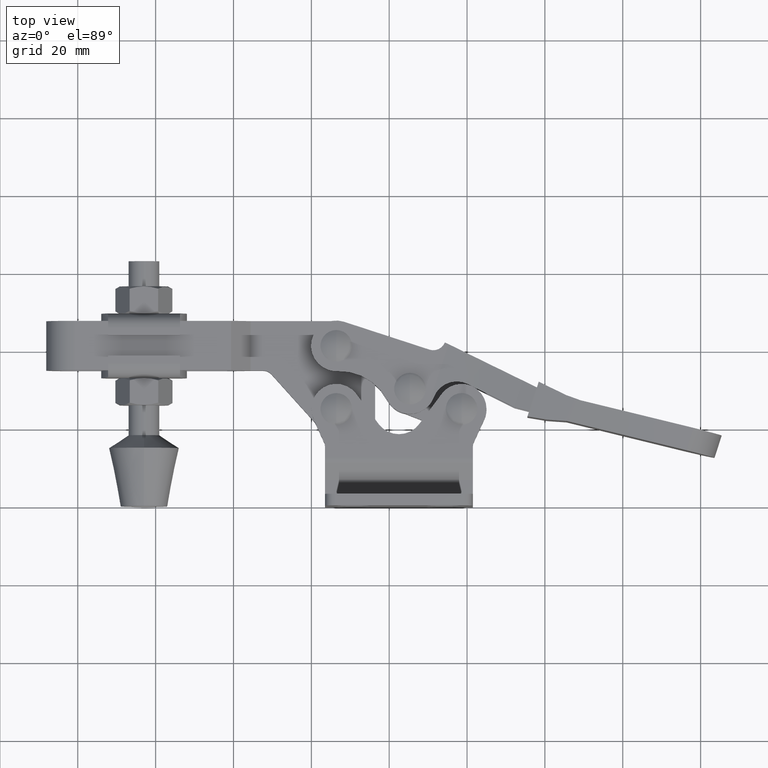
[diagram: clean part render]
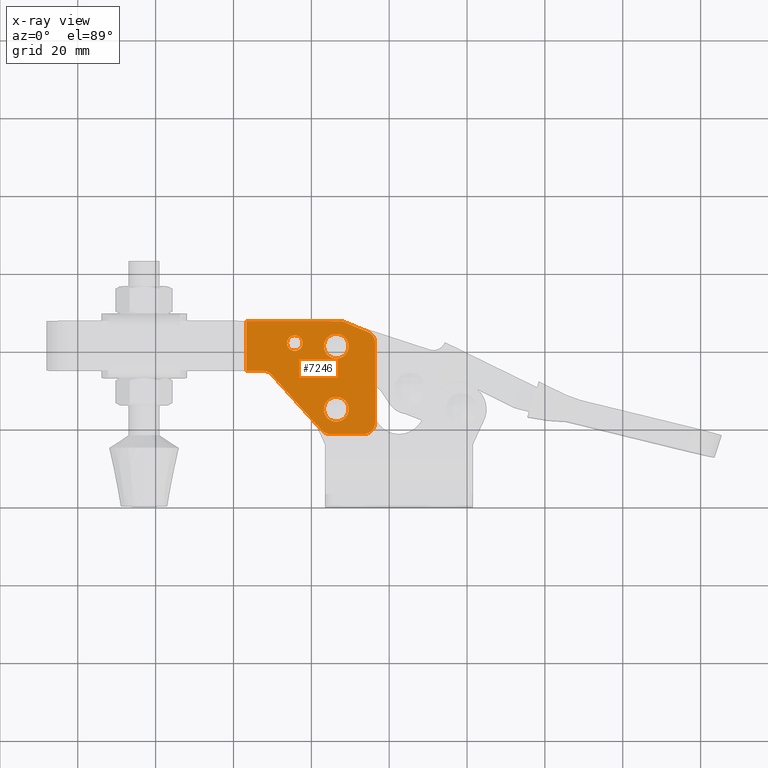
[diagram: x-ray — body ghosted, one internal face saturated and labeled with its STEP entity id]
A machine part, top view, then the same camera in x-ray: the body is ghosted and one INTERNAL B-rep face — a face not visible from any outside direction — is saturated and labeled: STEP entity #7246.
In plain terms, the highlighted planar face has unit normal (0, 0, 1).
Its self-contained STEP definition (entity closure, byte-faithful):
#3 = ORIENTED_EDGE ( 'NONE', *, *, #4973, .T. ) ;
#30 = CARTESIAN_POINT ( 'NONE',  ( 9.574999999992650500, 24.99999707674879100, 0.006213737008450817700 ) ) ;
#314 = VECTOR ( 'NONE', #4246, 999.9999999999998900 ) ;
#359 = AXIS2_PLACEMENT_3D ( 'NONE', #10386, #5218, #10763 ) ;
#385 = DIRECTION ( 'NONE',  ( -8.673617379884033500E-019, 1.000000000000000000, -1.577721810442023300E-030 ) ) ;
#412 = EDGE_CURVE ( 'NONE', #6933, #1074, #7555, .T. ) ;
#461 = DIRECTION ( 'NONE',  ( 1.940508389786498800E-033, 1.577721810442023300E-030, 1.000000000000000000 ) ) ;
#487 = VECTOR ( 'NONE', #6828, 1000.000000000000000 ) ;
#553 = DIRECTION ( 'NONE',  ( -1.940508389786499800E-033, -3.189280953627393800E-031, -1.000000000000000000 ) ) ;
#646 = CARTESIAN_POINT ( 'NONE',  ( -4.250000000007327500, 43.99999707674856400, 0.006213737008450817700 ) ) ;
#918 = LINE ( 'NONE', #4974, #5547 ) ;
#971 = ORIENTED_EDGE ( 'NONE', *, *, #2204, .T. ) ;
#1074 = VERTEX_POINT ( 'NONE', #646 ) ;
#1146 = LINE ( 'NONE', #6732, #3450 ) ;
#1161 = VERTEX_POINT ( 'NONE', #4003 ) ;
#1245 = LINE ( 'NONE', #2714, #7612 ) ;
#1265 = VERTEX_POINT ( 'NONE', #7302 ) ;
#1270 = CIRCLE ( 'NONE', #7458, 3.000000000000002700 ) ;
#1331 = CARTESIAN_POINT ( 'NONE',  ( -16.66435846768013500, 34.89999707674869700, 0.006213737008449083000 ) ) ;
#1623 = ORIENTED_EDGE ( 'NONE', *, *, #9325, .T. ) ;
#1646 = CARTESIAN_POINT ( 'NONE',  ( 3.224999999992794700, 41.19999707674865200, 0.006213737008450817700 ) ) ;
#1653 = AXIS2_PLACEMENT_3D ( 'NONE', #9444, #2251, #3476 ) ;
#1664 = CARTESIAN_POINT ( 'NONE',  ( 4.915478178523979800, 21.59999707674871400, 0.006213737008450817700 ) ) ;
#1682 = ORIENTED_EDGE ( 'NONE', *, *, #4040, .F. ) ;
#1824 = AXIS2_PLACEMENT_3D ( 'NONE', #3261, #9317, #4129 ) ;
#1838 = FACE_BOUND ( 'NONE', #10888, .T. ) ;
#1919 = EDGE_CURVE ( 'NONE', #10748, #8399, #4054, .T. ) ;
#1984 = ORIENTED_EDGE ( 'NONE', *, *, #9246, .T. ) ;
#2037 = CIRCLE ( 'NONE', #3854, 3.000000000000075500 ) ;
#2054 = VERTEX_POINT ( 'NONE', #30 ) ;
#2089 = ORIENTED_EDGE ( 'NONE', *, *, #2853, .F. ) ;
#2137 = EDGE_CURVE ( 'NONE', #10728, #10946, #5835, .T. ) ;
#2147 = ORIENTED_EDGE ( 'NONE', *, *, #4885, .T. ) ;
#2195 = VERTEX_POINT ( 'NONE', #7374 ) ;
#2204 = EDGE_CURVE ( 'NONE', #10728, #5798, #9890, .T. ) ;
#2251 = DIRECTION ( 'NONE',  ( -1.940508389786499800E-033, -3.189280953627393800E-031, -1.000000000000000000 ) ) ;
#2363 = DIRECTION ( 'NONE',  ( 1.000000000000000000, 8.673617379884033500E-019, -4.417621069237665000E-029 ) ) ;
#2539 = DIRECTION ( 'NONE',  ( 0.0000000000000000000, -1.000000000000000000, 0.0000000000000000000 ) ) ;
#2554 = CARTESIAN_POINT ( 'NONE',  ( -4.250000000007327500, 41.99999707674856400, 0.006213737008450817700 ) ) ;
#2644 = LINE ( 'NONE', #7680, #314 ) ;
#2714 = CARTESIAN_POINT ( 'NONE',  ( -25.70849758897743300, 18.59999707674865700, 0.006213737008450817700 ) ) ;
#2840 = EDGE_CURVE ( 'NONE', #2195, #8752, #918, .T. ) ;
#2853 = EDGE_CURVE ( 'NONE', #1074, #6933, #2967, .T. ) ;
#2935 = EDGE_CURVE ( 'NONE', #8752, #1161, #4176, .T. ) ;
#2967 = CIRCLE ( 'NONE', #1824, 2.000000000000001800 ) ;
#3047 = CARTESIAN_POINT ( 'NONE',  ( 13.39999999999239800, 42.08881813416093800, 0.006213737008450817700 ) ) ;
#3058 = CARTESIAN_POINT ( 'NONE',  ( -25.70849758897743300, 18.59999707674865700, 0.006213737008450817700 ) ) ;
#3186 = AXIS2_PLACEMENT_3D ( 'NONE', #9984, #4814, #10869 ) ;
#3261 = CARTESIAN_POINT ( 'NONE',  ( -4.250000000007327500, 41.99999707674856400, 0.006213737008450817700 ) ) ;
#3347 = CARTESIAN_POINT ( 'NONE',  ( 6.399999999992722600, 24.99999707674879100, 0.006213737008450817700 ) ) ;
#3450 = VECTOR ( 'NONE', #8446, 1000.000000000000000 ) ;
#3476 = DIRECTION ( 'NONE',  ( 0.0000000000000000000, -1.000000000000000000, 0.0000000000000000000 ) ) ;
#3617 = CIRCLE ( 'NONE', #359, 3.174999999999927900 ) ;
#3645 = CARTESIAN_POINT ( 'NONE',  ( 16.39999999999245600, 42.08881813416093800, 0.006213737008450817700 ) ) ;
#3757 = CARTESIAN_POINT ( 'NONE',  ( -12.43547817853888500, 31.89999707674869700, 0.006213737008450817700 ) ) ;
#3771 = DIRECTION ( 'NONE',  ( -0.6692165548691980700, 0.7430674280904806500, 2.839109783880072900E-029 ) ) ;
#3854 = AXIS2_PLACEMENT_3D ( 'NONE', #3757, #9812, #4642 ) ;
#3907 = DIRECTION ( 'NONE',  ( 0.0000000000000000000, -1.000000000000000000, 0.0000000000000000000 ) ) ;
#4003 = CARTESIAN_POINT ( 'NONE',  ( 8.449102400178132300, 47.37372243148757900, 0.006213737008451685100 ) ) ;
#4040 = EDGE_CURVE ( 'NONE', #6987, #2054, #5386, .T. ) ;
#4054 = CIRCLE ( 'NONE', #1653, 3.174999999999927900 ) ;
#4092 = EDGE_CURVE ( 'NONE', #11155, #2195, #5111, .T. ) ;
#4129 = DIRECTION ( 'NONE',  ( 0.0000000000000000000, -1.000000000000000000, 0.0000000000000000000 ) ) ;
#4134 = FACE_BOUND ( 'NONE', #10608, .T. ) ;
#4176 = CIRCLE ( 'NONE', #8210, 3.000000000000023500 ) ;
#4216 = DIRECTION ( 'NONE',  ( 0.0000000000000000000, -1.000000000000000000, 0.0000000000000000000 ) ) ;
#4246 = DIRECTION ( 'NONE',  ( 0.9245751182462229600, -0.3809998040944154700, -4.024311352388030500E-029 ) ) ;
#4250 = CARTESIAN_POINT ( 'NONE',  ( 7.306102987895224400, 44.59999707674872800, 0.006213737008450817700 ) ) ;
#4458 = DIRECTION ( 'NONE',  ( 1.000000000000000000, 8.673617379884033500E-019, -4.417621069237665000E-029 ) ) ;
#4642 = DIRECTION ( 'NONE',  ( 0.0000000000000000000, -1.000000000000000000, 0.0000000000000000000 ) ) ;
#4666 = LINE ( 'NONE', #10708, #7224 ) ;
#4814 = DIRECTION ( 'NONE',  ( -1.940508389786499800E-033, -3.189280953627393800E-031, -1.000000000000000000 ) ) ;
#4822 = CARTESIAN_POINT ( 'NONE',  ( 3.224999999992793900, 24.99999707674879100, 0.006213737008450817700 ) ) ;
#4885 = EDGE_CURVE ( 'NONE', #7166, #11155, #1146, .T. ) ;
#4944 = ORIENTED_EDGE ( 'NONE', *, *, #7949, .T. ) ;
#4973 = EDGE_CURVE ( 'NONE', #1161, #5807, #2644, .T. ) ;
#4974 = CARTESIAN_POINT ( 'NONE',  ( -25.70849758897743300, 47.59999707674866400, 0.006213737008450817700 ) ) ;
#5080 = ORIENTED_EDGE ( 'NONE', *, *, #5756, .T. ) ;
#5111 = LINE ( 'NONE', #9364, #487 ) ;
#5123 = DIRECTION ( 'NONE',  ( -3.469446951953587000E-015, -1.000000000000000000, 0.0000000000000000000 ) ) ;
#5212 = ORIENTED_EDGE ( 'NONE', *, *, #10796, .F. ) ;
#5218 = DIRECTION ( 'NONE',  ( -1.940508389786499800E-033, -3.189280953627393800E-031, -1.000000000000000000 ) ) ;
#5386 = CIRCLE ( 'NONE', #8506, 3.174999999999927900 ) ;
#5547 = VECTOR ( 'NONE', #2363, 1000.000000000000000 ) ;
#5603 = CARTESIAN_POINT ( 'NONE',  ( 13.39999999999262000, 18.59999707674865700, 0.006213737008450817700 ) ) ;
#5605 = CARTESIAN_POINT ( 'NONE',  ( 16.39999999999274000, 47.59999707674866400, 0.006213737008450817700 ) ) ;
#5611 = CARTESIAN_POINT ( 'NONE',  ( -4.250000000007327500, 39.99999707674856400, 0.006213737008450817700 ) ) ;
#5756 = EDGE_CURVE ( 'NONE', #6944, #10537, #4666, .T. ) ;
#5758 = CARTESIAN_POINT ( 'NONE',  ( 6.399999999992722600, 41.19999707674865200, 0.006213737008450817700 ) ) ;
#5798 = VERTEX_POINT ( 'NONE', #5603 ) ;
#5807 = VERTEX_POINT ( 'NONE', #8168 ) ;
#5835 = LINE ( 'NONE', #5605, #10278 ) ;
#6472 = CARTESIAN_POINT ( 'NONE',  ( 2.686275894252385700, 19.59234741214129000, 0.006213737008450817700 ) ) ;
#6531 = DIRECTION ( 'NONE',  ( 8.673617379884033500E-019, -1.000000000000000000, 1.577721810442023300E-030 ) ) ;
#6618 = DIRECTION ( 'NONE',  ( 0.0000000000000000000, -1.000000000000000000, 0.0000000000000000000 ) ) ;
#6661 = ORIENTED_EDGE ( 'NONE', *, *, #2137, .F. ) ;
#6732 = CARTESIAN_POINT ( 'NONE',  ( -68.10000000000707100, 34.89999707674869700, 0.006213737008450817700 ) ) ;
#6758 = CARTESIAN_POINT ( 'NONE',  ( -12.43547817853888500, 34.89999707674877500, 0.006213737008450817700 ) ) ;
#6828 = DIRECTION ( 'NONE',  ( -8.673617379884033500E-019, 1.000000000000000000, -1.577721810442023300E-030 ) ) ;
#6856 = AXIS2_PLACEMENT_3D ( 'NONE', #2554, #8459, #7911 ) ;
#6933 = VERTEX_POINT ( 'NONE', #5611 ) ;
#6944 = VERTEX_POINT ( 'NONE', #6472 ) ;
#6987 = VERTEX_POINT ( 'NONE', #4822 ) ;
#7166 = VERTEX_POINT ( 'NONE', #6758 ) ;
#7224 = VECTOR ( 'NONE', #3771, 1000.000000000000100 ) ;
#7246 = ADVANCED_FACE ( 'NONE', ( #9282, #1838, #11059, #4134 ), #9974, .F. ) ;
#7302 = CARTESIAN_POINT ( 'NONE',  ( 4.915478178523979800, 18.59999707674865700, 0.006213737008450817700 ) ) ;
#7374 = CARTESIAN_POINT ( 'NONE',  ( -16.66435846768014200, 47.59999707674866400, 0.006213737008450817700 ) ) ;
#7405 = CARTESIAN_POINT ( 'NONE',  ( -10.20627589426734400, 33.90764674135629500, 0.006213737008450817700 ) ) ;
#7458 = AXIS2_PLACEMENT_3D ( 'NONE', #1664, #7722, #2539 ) ;
#7515 = CARTESIAN_POINT ( 'NONE',  ( 9.574999999992650500, 41.19999707674865200, 0.006213737008450817700 ) ) ;
#7555 = CIRCLE ( 'NONE', #6856, 2.000000000000001800 ) ;
#7612 = VECTOR ( 'NONE', #4458, 1000.000000000000000 ) ;
#7680 = CARTESIAN_POINT ( 'NONE',  ( 8.449102400178132300, 47.37372243148757900, 0.006213737008451685100 ) ) ;
#7722 = DIRECTION ( 'NONE',  ( -1.940508389786499800E-033, -3.189280953627393800E-031, -1.000000000000000000 ) ) ;
#7777 = ORIENTED_EDGE ( 'NONE', *, *, #412, .F. ) ;
#7911 = DIRECTION ( 'NONE',  ( 0.0000000000000000000, -1.000000000000000000, 0.0000000000000000000 ) ) ;
#7949 = EDGE_CURVE ( 'NONE', #1265, #6944, #1270, .T. ) ;
#8168 = CARTESIAN_POINT ( 'NONE',  ( 14.54299941227576900, 44.86254348889961800, 0.006213737008450817700 ) ) ;
#8210 = AXIS2_PLACEMENT_3D ( 'NONE', #4250, #10297, #5123 ) ;
#8326 = AXIS2_PLACEMENT_3D ( 'NONE', #3058, #461, #6531 ) ;
#8399 = VERTEX_POINT ( 'NONE', #7515 ) ;
#8446 = DIRECTION ( 'NONE',  ( -1.000000000000000000, -8.673617379884033500E-019, 4.417621069237665000E-029 ) ) ;
#8459 = DIRECTION ( 'NONE',  ( -1.940508389786499800E-033, -3.189280953627393800E-031, -1.000000000000000000 ) ) ;
#8506 = AXIS2_PLACEMENT_3D ( 'NONE', #3347, #9408, #4216 ) ;
#8651 = EDGE_CURVE ( 'NONE', #1265, #5798, #1245, .T. ) ;
#8752 = VERTEX_POINT ( 'NONE', #9785 ) ;
#8795 = AXIS2_PLACEMENT_3D ( 'NONE', #5758, #553, #6618 ) ;
#8796 = CIRCLE ( 'NONE', #8795, 3.174999999999927900 ) ;
#9098 = DIRECTION ( 'NONE',  ( -1.940508389786499800E-033, -3.189280953627393800E-031, -1.000000000000000000 ) ) ;
#9246 = EDGE_CURVE ( 'NONE', #10537, #7166, #2037, .T. ) ;
#9282 = FACE_BOUND ( 'NONE', #9511, .T. ) ;
#9317 = DIRECTION ( 'NONE',  ( -1.940508389786499800E-033, -3.189280953627393800E-031, -1.000000000000000000 ) ) ;
#9325 = EDGE_CURVE ( 'NONE', #5807, #10946, #9620, .T. ) ;
#9364 = CARTESIAN_POINT ( 'NONE',  ( -16.66435846768014200, 47.59999707674866400, 0.006213737008450817700 ) ) ;
#9408 = DIRECTION ( 'NONE',  ( -1.940508389786499800E-033, -3.189280953627393800E-031, -1.000000000000000000 ) ) ;
#9444 = CARTESIAN_POINT ( 'NONE',  ( 6.399999999992722600, 41.19999707674865200, 0.006213737008450817700 ) ) ;
#9450 = ORIENTED_EDGE ( 'NONE', *, *, #2840, .T. ) ;
#9504 = ORIENTED_EDGE ( 'NONE', *, *, #10059, .F. ) ;
#9511 = EDGE_LOOP ( 'NONE', ( #9504, #10464 ) ) ;
#9517 = ORIENTED_EDGE ( 'NONE', *, *, #8651, .F. ) ;
#9620 = CIRCLE ( 'NONE', #10824, 3.000000000000058200 ) ;
#9785 = CARTESIAN_POINT ( 'NONE',  ( 7.306102987895224400, 47.59999707674866400, 0.006213737008450817700 ) ) ;
#9812 = DIRECTION ( 'NONE',  ( 1.940508389786499800E-033, 3.189280953627393800E-031, 1.000000000000000000 ) ) ;
#9885 = ORIENTED_EDGE ( 'NONE', *, *, #4092, .T. ) ;
#9887 = ORIENTED_EDGE ( 'NONE', *, *, #2935, .T. ) ;
#9890 = CIRCLE ( 'NONE', #3186, 3.000000000000058200 ) ;
#9974 = PLANE ( 'NONE',  #8326 ) ;
#9984 = CARTESIAN_POINT ( 'NONE',  ( 13.39999999999262000, 21.59999707674871400, 0.006213737008450817700 ) ) ;
#10059 = EDGE_CURVE ( 'NONE', #8399, #10748, #8796, .T. ) ;
#10273 = CARTESIAN_POINT ( 'NONE',  ( 16.39999999999274000, 21.59999707674871400, 0.006213737008450817700 ) ) ;
#10278 = VECTOR ( 'NONE', #385, 1000.000000000000000 ) ;
#10297 = DIRECTION ( 'NONE',  ( -1.940508389786499800E-033, -3.189280953627393800E-031, -1.000000000000000000 ) ) ;
#10386 = CARTESIAN_POINT ( 'NONE',  ( 6.399999999992722600, 24.99999707674879100, 0.006213737008450817700 ) ) ;
#10464 = ORIENTED_EDGE ( 'NONE', *, *, #1919, .F. ) ;
#10537 = VERTEX_POINT ( 'NONE', #7405 ) ;
#10608 = EDGE_LOOP ( 'NONE', ( #7777, #2089 ) ) ;
#10708 = CARTESIAN_POINT ( 'NONE',  ( 2.686275894252385700, 19.59234741214129000, 0.006213737008450817700 ) ) ;
#10728 = VERTEX_POINT ( 'NONE', #10273 ) ;
#10748 = VERTEX_POINT ( 'NONE', #1646 ) ;
#10763 = DIRECTION ( 'NONE',  ( 0.0000000000000000000, -1.000000000000000000, 0.0000000000000000000 ) ) ;
#10796 = EDGE_CURVE ( 'NONE', #2054, #6987, #3617, .T. ) ;
#10824 = AXIS2_PLACEMENT_3D ( 'NONE', #3047, #9098, #3907 ) ;
#10869 = DIRECTION ( 'NONE',  ( 0.0000000000000000000, -1.000000000000000000, 0.0000000000000000000 ) ) ;
#10888 = EDGE_LOOP ( 'NONE', ( #5212, #1682 ) ) ;
#10946 = VERTEX_POINT ( 'NONE', #3645 ) ;
#11059 = FACE_OUTER_BOUND ( 'NONE', #11099, .T. ) ;
#11099 = EDGE_LOOP ( 'NONE', ( #4944, #5080, #1984, #2147, #9885, #9450, #9887, #3, #1623, #6661, #971, #9517 ) ) ;
#11155 = VERTEX_POINT ( 'NONE', #1331 ) ;